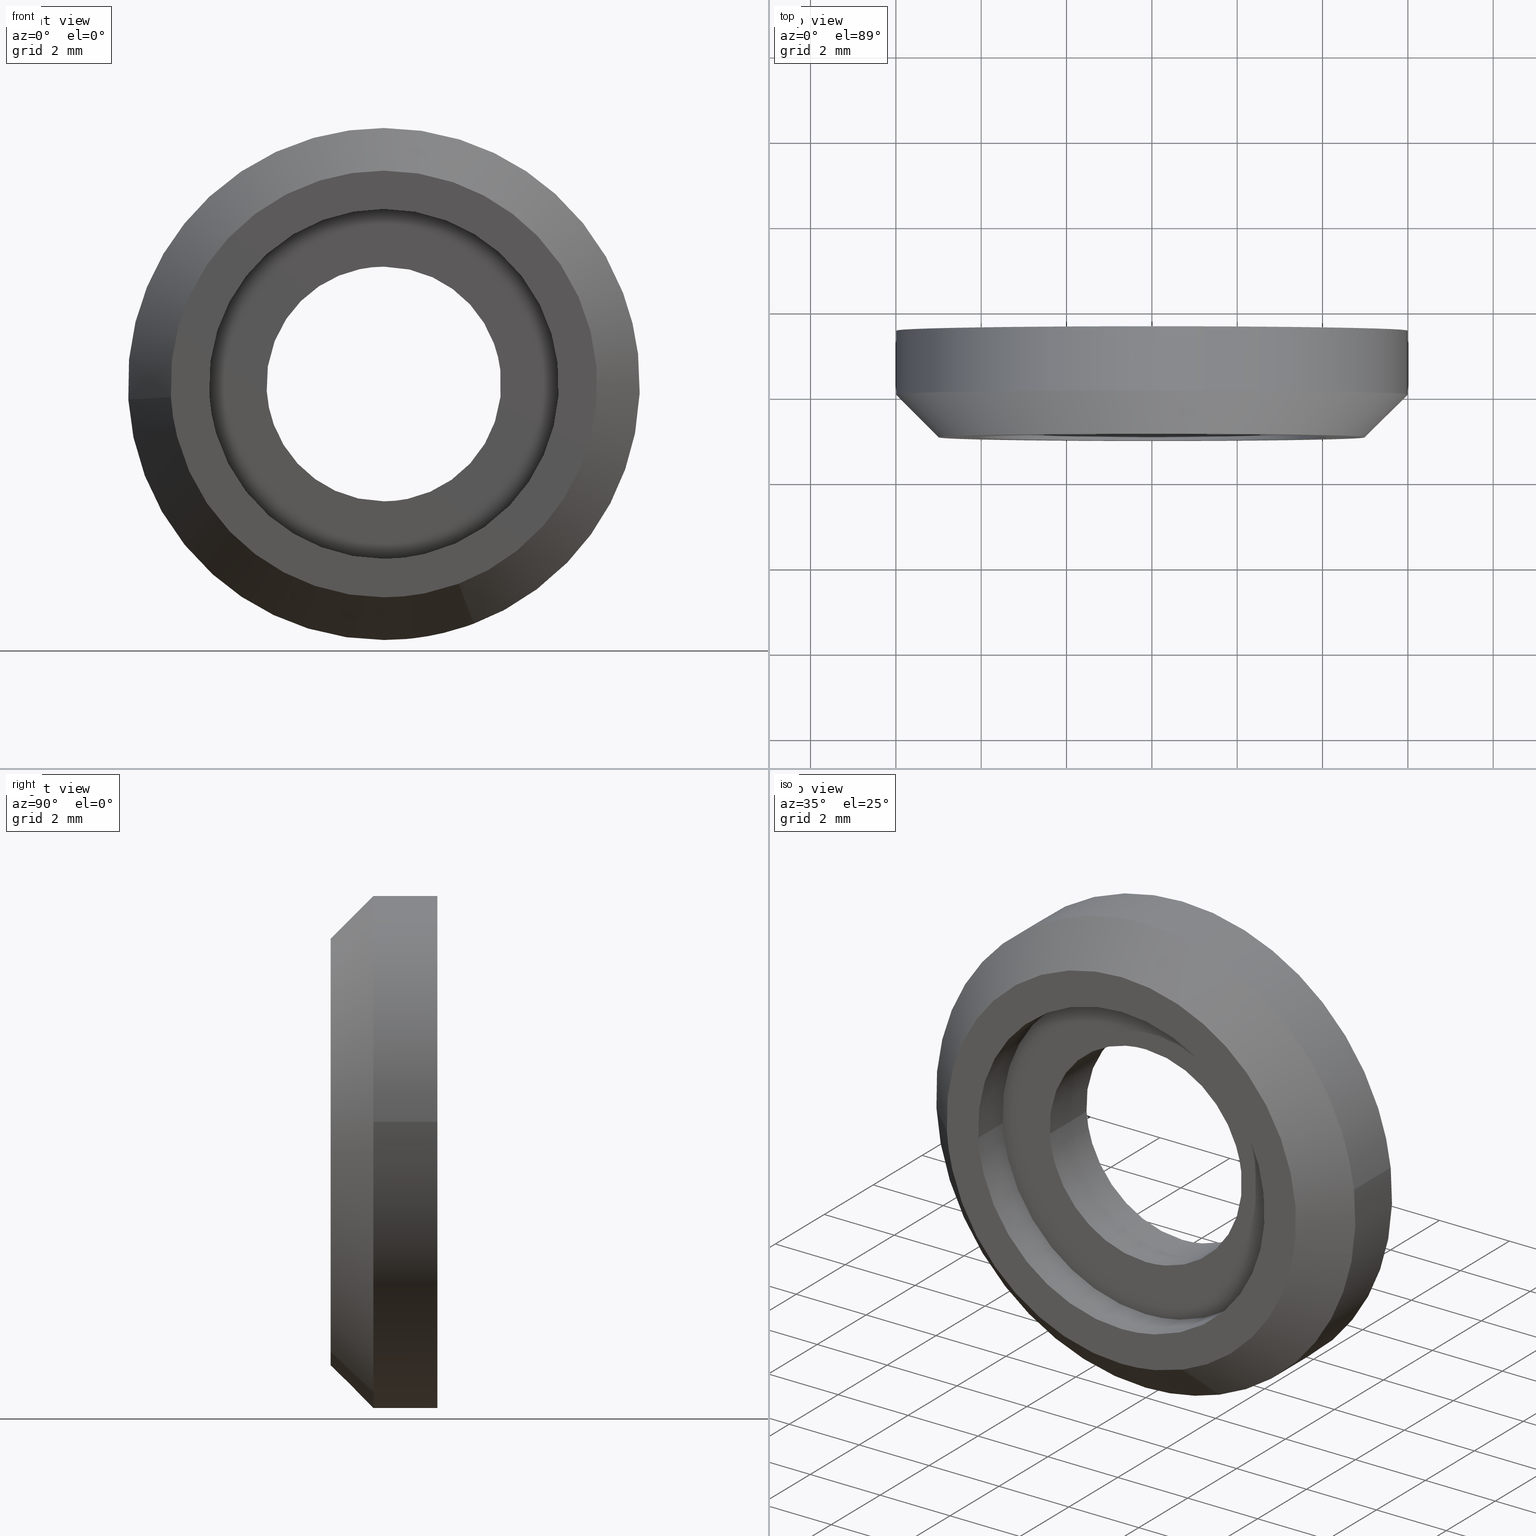
[diagram: canonical four-view strip — front | top / right | iso, engineering-drawing reading convention]
A machine part, canonical four-view strip (front | top / right | iso — engineering-drawing reading convention). The complete STEP part file that produces these views, byte-faithful:
ISO-10303-21;
HEADER;
/****************************************************************
 * Generated by software with PDE/Lib inside                    *
 * PDElib Version 4.4.1-0003, patched  Thursday August 19 11:58 *
 * International Technegroup Inc. (www.iti-oh.com)              *
 ****************************************************************/
FILE_DESCRIPTION((''),'2;1');
FILE_NAME('','2005-10-12T14:41:45',(''),(''),'','CADfix','');
FILE_SCHEMA(('AUTOMOTIVE_DESIGN'));
ENDSEC;
DATA;
#5=APPLICATION_CONTEXT('automotive design');
#6=APPLICATION_PROTOCOL_DEFINITION('Draft International Standard','automotive_design',1998,#5);
#7=PRODUCT_CONTEXT('None',#5,'mechanical');
#8=PRODUCT('facing ring','','None',(#7));
#9=PRODUCT_RELATED_PRODUCT_CATEGORY('part','description',(#8));
#10=PRODUCT_DEFINITION_FORMATION('None','None',#8);
#11=PRODUCT_DEFINITION_CONTEXT('part definition',#5,'design');
#12=PRODUCT_DEFINITION('None','None',#10,#11);
#18=(NAMED_UNIT(*)PLANE_ANGLE_UNIT()SI_UNIT($,.RADIAN.));
#19=DIMENSIONAL_EXPONENTS(0.0,0.0,0.0,0.0,0.0,0.0,0.0);
#20=PLANE_ANGLE_MEASURE_WITH_UNIT(PLANE_ANGLE_MEASURE(0.017453292500000),#18);
#24=(CONVERSION_BASED_UNIT('DEGREE',#20)NAMED_UNIT(#19)PLANE_ANGLE_UNIT());
#28=(NAMED_UNIT(*)SI_UNIT($,.STERADIAN.)SOLID_ANGLE_UNIT());
#32=(LENGTH_UNIT()NAMED_UNIT(*)SI_UNIT(.MILLI.,.METRE.));
#34=UNCERTAINTY_MEASURE_WITH_UNIT(LENGTH_MEASURE(0.001000000000000),#32,'DISTANCE_ACCURACY_VALUE','');
#36=(GEOMETRIC_REPRESENTATION_CONTEXT(3)GLOBAL_UNCERTAINTY_ASSIGNED_CONTEXT((#34))GLOBAL_UNIT_ASSIGNED_CONTEXT((#24,#28,#32))REPRESENTATION_CONTEXT('None','None'));
#37=AXIS2_PLACEMENT_3D('',#38,#39,#40);
#38=CARTESIAN_POINT('',(0.0,0.0,0.0));
#39=DIRECTION('',(0.0,0.0,1.0));
#40=DIRECTION('',(1.0,0.0,0.0));
#41=ADVANCED_BREP_SHAPE_REPRESENTATION('',(#37,#807),#36);
#42=PRODUCT_DEFINITION_SHAPE('','',#12);
#43=SHAPE_DEFINITION_REPRESENTATION(#42,#41);
#44=CARTESIAN_POINT('',(1.749299422598068,-1.025000000000000,-4.657314304413859));
#45=CARTESIAN_POINT('',(1.049672522284154,-1.025000000000000,-4.920095996341613));
#46=CARTESIAN_POINT('',(0.303716484185913,-1.025000000000000,-4.965720622148776));
#47=CARTESIAN_POINT('',(-4.662004137962864,-1.025000000000000,-5.269437106334690));
#48=CARTESIAN_POINT('',(-4.965720622148776,-1.025000000000000,-0.303716484185913));
#49=CARTESIAN_POINT('',(2.118718056943216,0.025625000000000,-5.640850151866094));
#50=CARTESIAN_POINT('',(1.271343314992657,0.025625000000000,-5.959126319187136));
#51=CARTESIAN_POINT('',(0.367855606034723,0.025625000000000,-6.014385994740761));
#52=CARTESIAN_POINT('',(-5.646530388706038,0.025625000000000,-6.382241600775484));
#53=CARTESIAN_POINT('',(-6.014385994740761,0.025625000000000,-0.367855606034723));
#61=(BOUNDED_SURFACE()B_SPLINE_SURFACE(2,1,((#44,#49),(#45,#50),(#46,#51),(#47,#52),(#48,#53)),.UNSPECIFIED.,.F.,.F.,.U.)B_SPLINE_SURFACE_WITH_KNOTS((3,2,3),(2,2),(0.0,1.996716477419504,11.980298864517030),(0.0,1.0),.UNSPECIFIED.)GEOMETRIC_REPRESENTATION_ITEM()RATIONAL_B_SPLINE_SURFACE(((0.906274169979695,0.906274169979695),(0.941421356237309,0.941421356237309),(1.0,1.0),(0.707106781186548,0.707106781186548),(1.0,1.0)))REPRESENTATION_ITEM('')SURFACE());
#62=CARTESIAN_POINT('',(2.109707846355995,6.415291E-013,-5.616861472658163));
#63=VERTEX_POINT('',#62);
#64=CARTESIAN_POINT('',(0.0,0.0,-6.0));
#65=VERTEX_POINT('',#64);
#66=CARTESIAN_POINT('',(2.109707846355995,6.415291E-013,-5.616861472658163));
#67=CARTESIAN_POINT('',(1.089644316407557,0.0,-6.000000000000001));
#68=CARTESIAN_POINT('',(0.0,0.0,-6.0));
#76=(BOUNDED_CURVE()B_SPLINE_CURVE(2,(#66,#67,#68),.UNSPECIFIED.,.F.,.U.)B_SPLINE_CURVE_WITH_KNOTS((3,3),(0.440284170898553,0.500000000000000),.UNSPECIFIED.)CURVE()GEOMETRIC_REPRESENTATION_ITEM()RATIONAL_B_SPLINE_CURVE((0.893499554635329,0.930038554401453,1.0))REPRESENTATION_ITEM(''));
#77=EDGE_CURVE('',#63,#65,#76,.T.);
#78=ORIENTED_EDGE('',*,*,#77,.F.);
#79=CARTESIAN_POINT('',(1.758089871958013,-0.999999999999982,-4.680717893883243));
#80=VERTEX_POINT('',#79);
#81=CARTESIAN_POINT('',(1.758089871958013,-0.999999999999982,-4.680717893883243));
#82=CARTESIAN_POINT('',(2.109707846355995,6.415291E-013,-5.616861472658163));
#83=QUASI_UNIFORM_CURVE('',1,(#81,#82),.UNSPECIFIED.,.F.,.U.);
#84=EDGE_CURVE('',#80,#63,#83,.T.);
#85=ORIENTED_EDGE('',*,*,#84,.F.);
#86=CARTESIAN_POINT('',(0.0,-1.0,-5.0));
#87=VERTEX_POINT('',#86);
#88=CARTESIAN_POINT('',(1.758089871958013,-0.999999999999982,-4.680717893883243));
#89=CARTESIAN_POINT('',(0.908036930333967,-1.0,-5.0));
#90=CARTESIAN_POINT('',(0.0,-1.0,-5.0));
#98=(BOUNDED_CURVE()B_SPLINE_CURVE(2,(#88,#89,#90),.UNSPECIFIED.,.F.,.U.)B_SPLINE_CURVE_WITH_KNOTS((3,3),(0.440284170898899,0.500000000000000),.UNSPECIFIED.)CURVE()GEOMETRIC_REPRESENTATION_ITEM()RATIONAL_B_SPLINE_CURVE((0.893499554635753,0.930038554401858,1.0))REPRESENTATION_ITEM(''));
#99=EDGE_CURVE('',#80,#87,#98,.T.);
#100=ORIENTED_EDGE('',*,*,#99,.T.);
#101=CARTESIAN_POINT('',(-4.990673992109720,-0.999999999999274,-0.305242697679796));
#102=VERTEX_POINT('',#101);
#103=CARTESIAN_POINT('',(0.0,-1.0,-5.0));
#104=CARTESIAN_POINT('',(-4.703530334518134,-1.0,-5.000000000000001));
#105=CARTESIAN_POINT('',(-4.990673992109720,-0.999999999999274,-0.305242697679796));
#113=(BOUNDED_CURVE()B_SPLINE_CURVE(2,(#103,#104,#105),.UNSPECIFIED.,.F.,.U.)B_SPLINE_CURVE_WITH_KNOTS((3,3),(0.500000000000000,0.739332962241590),.UNSPECIFIED.)CURVE()GEOMETRIC_REPRESENTATION_ITEM()RATIONAL_B_SPLINE_CURVE((1.0,0.719603993283609,0.976072041672390))REPRESENTATION_ITEM(''));
#114=EDGE_CURVE('',#87,#102,#113,.T.);
#115=ORIENTED_EDGE('',*,*,#114,.T.);
#116=CARTESIAN_POINT('',(-5.988808854563761,-1.488925E-009,-0.366290165890411));
#117=VERTEX_POINT('',#116);
#118=CARTESIAN_POINT('',(-4.990673992109720,-0.999999999999274,-0.305242697679796));
#119=CARTESIAN_POINT('',(-5.988808854563761,-1.488925E-009,-0.366290165890411));
#120=QUASI_UNIFORM_CURVE('',1,(#118,#119),.UNSPECIFIED.,.F.,.U.);
#121=EDGE_CURVE('',#102,#117,#120,.T.);
#122=ORIENTED_EDGE('',*,*,#121,.T.);
#123=CARTESIAN_POINT('',(0.0,0.0,-6.0));
#124=CARTESIAN_POINT('',(-5.644237412914464,0.0,-6.000000000000001));
#125=CARTESIAN_POINT('',(-5.988808854563761,-1.488925E-009,-0.366290165890411));
#133=(BOUNDED_CURVE()B_SPLINE_CURVE(2,(#123,#124,#125),.UNSPECIFIED.,.F.,.U.)B_SPLINE_CURVE_WITH_KNOTS((3,3),(0.500000000000000,0.739332993105690),.UNSPECIFIED.)CURVE()GEOMETRIC_REPRESENTATION_ITEM()RATIONAL_B_SPLINE_CURVE((1.0,0.719603957124067,0.976072107820041))REPRESENTATION_ITEM(''));
#134=EDGE_CURVE('',#65,#117,#133,.T.);
#135=ORIENTED_EDGE('',*,*,#134,.F.);
#136=EDGE_LOOP('',(#78,#85,#100,#115,#122,#135));
#137=FACE_OUTER_BOUND('',#136,.T.);
#138=ADVANCED_FACE('',(#137),#61,.T.);
#139=CARTESIAN_POINT('',(-4.965720622148776,-1.025000000000000,-0.303716484185913));
#140=CARTESIAN_POINT('',(-5.269437106334690,-1.025000000000000,4.662004137962864));
#141=CARTESIAN_POINT('',(-0.303716484185913,-1.025000000000000,4.965720622148776));
#142=CARTESIAN_POINT('',(4.662004137962864,-1.025000000000000,5.269437106334690));
#143=CARTESIAN_POINT('',(4.965720622148776,-1.025000000000000,0.303716484185913));
#144=CARTESIAN_POINT('',(5.190105183774966,-1.025000000000000,-3.364938669470242));
#145=CARTESIAN_POINT('',(1.749299422598068,-1.025000000000000,-4.657314304413859));
#146=CARTESIAN_POINT('',(-6.014385994740761,0.025625000000000,-0.367855606034723));
#147=CARTESIAN_POINT('',(-6.382241600775484,0.025625000000000,5.646530388706038));
#148=CARTESIAN_POINT('',(-0.367855606034723,0.025625000000000,6.014385994740761));
#149=CARTESIAN_POINT('',(5.646530388706038,0.025625000000000,6.382241600775484));
#150=CARTESIAN_POINT('',(6.014385994740761,0.025625000000000,0.367855606034723));
#151=CARTESIAN_POINT('',(6.286156291052079,0.025625000000000,-4.075549461352096));
#152=CARTESIAN_POINT('',(2.118718056943216,0.025625000000000,-5.640850151866094));
#160=(BOUNDED_SURFACE()B_SPLINE_SURFACE(2,1,((#139,#146),(#140,#147),(#141,#148),(#142,#149),(#143,#150),(#144,#151),(#145,#152)),.UNSPECIFIED.,.F.,.F.,.U.)B_SPLINE_SURFACE_WITH_KNOTS((3,2,2,3),(2,2),(0.0,9.983582387097520,19.967164774195041,27.954030683873061),(0.0,1.0),.UNSPECIFIED.)GEOMETRIC_REPRESENTATION_ITEM()RATIONAL_B_SPLINE_SURFACE(((1.0,1.0),(0.707106781186548,0.707106781186548),(1.0,1.0),(0.707106781186548,0.707106781186548),(1.0,1.0),(0.765685424949238,0.765685424949238),(0.906274169979695,0.906274169979695)))REPRESENTATION_ITEM('')SURFACE());
#161=CARTESIAN_POINT('',(5.958057609029551,2.338979E-014,0.708201614987204));
#162=VERTEX_POINT('',#161);
#163=CARTESIAN_POINT('',(5.958057609029551,2.338979E-014,0.708201614987204));
#164=CARTESIAN_POINT('',(5.999999999999999,0.0,0.355342801385659));
#165=CARTESIAN_POINT('',(6.0,0.0,0.0));
#166=CARTESIAN_POINT('',(6.0,0.0,-4.155657574156489));
#167=CARTESIAN_POINT('',(2.109707846355995,6.415291E-013,-5.616861472658164));
#175=(BOUNDED_CURVE()B_SPLINE_CURVE(2,(#163,#164,#165,#166,#167),.UNSPECIFIED.,.F.,.U.)B_SPLINE_CURVE_WITH_KNOTS((3,2,3),(0.229562581104653,0.250000000000000,0.440284170898552),.UNSPECIFIED.)CURVE()GEOMETRIC_REPRESENTATION_ITEM()RATIONAL_B_SPLINE_CURVE((0.956026965066855,0.976056074382012,1.0,0.777068226785095,0.893499554635329))REPRESENTATION_ITEM(''));
#176=EDGE_CURVE('',#162,#63,#175,.T.);
#177=ORIENTED_EDGE('',*,*,#176,.F.);
#178=CARTESIAN_POINT('',(0.0,0.0,6.0));
#179=VERTEX_POINT('',#178);
#180=CARTESIAN_POINT('',(0.0,0.0,6.0));
#181=CARTESIAN_POINT('',(5.329050572111043,0.0,6.000000000000001));
#182=CARTESIAN_POINT('',(5.958057609029551,2.338979E-014,0.708201614987204));
#190=(BOUNDED_CURVE()B_SPLINE_CURVE(2,(#180,#181,#182),.UNSPECIFIED.,.F.,.U.)B_SPLINE_CURVE_WITH_KNOTS((3,3),(0.0,0.229562581104653),.UNSPECIFIED.)CURVE()GEOMETRIC_REPRESENTATION_ITEM()RATIONAL_B_SPLINE_CURVE((1.0,0.731050706804535,0.956026965066855))REPRESENTATION_ITEM(''));
#191=EDGE_CURVE('',#179,#162,#190,.T.);
#192=ORIENTED_EDGE('',*,*,#191,.F.);
#193=CARTESIAN_POINT('',(-5.988808854563761,-1.488925E-009,-0.366290165890411));
#194=CARTESIAN_POINT('',(-6.0,0.0,-0.183316042675821));
#195=CARTESIAN_POINT('',(-6.0,0.0,0.0));
#196=CARTESIAN_POINT('',(-6.0,0.0,6.0));
#197=CARTESIAN_POINT('',(0.0,0.0,6.0));
#205=(BOUNDED_CURVE()B_SPLINE_CURVE(2,(#193,#194,#195,#196,#197),.UNSPECIFIED.,.F.,.U.)B_SPLINE_CURVE_WITH_KNOTS((3,2,3),(0.739332993105690,0.750000000000000,1.0),.UNSPECIFIED.)CURVE()GEOMETRIC_REPRESENTATION_ITEM()RATIONAL_B_SPLINE_CURVE((0.976072107820041,0.987502824062481,1.0,0.707106781186548,1.0))REPRESENTATION_ITEM(''));
#206=EDGE_CURVE('',#117,#179,#205,.T.);
#207=ORIENTED_EDGE('',*,*,#206,.F.);
#208=ORIENTED_EDGE('',*,*,#121,.F.);
#209=CARTESIAN_POINT('',(0.0,-1.0,5.0));
#210=VERTEX_POINT('',#209);
#211=CARTESIAN_POINT('',(-4.990673992109720,-0.999999999999274,-0.305242697679796));
#212=CARTESIAN_POINT('',(-5.000000000000001,-1.0,-0.152763816498427));
#213=CARTESIAN_POINT('',(-5.0,-1.0,0.0));
#214=CARTESIAN_POINT('',(-5.000000000000001,-1.0,5.000000000000001));
#215=CARTESIAN_POINT('',(0.0,-1.0,5.0));
#223=(BOUNDED_CURVE()B_SPLINE_CURVE(2,(#211,#212,#213,#214,#215),.UNSPECIFIED.,.F.,.U.)B_SPLINE_CURVE_WITH_KNOTS((3,2,3),(0.739332962241590,0.750000000000000,1.0),.UNSPECIFIED.)CURVE()GEOMETRIC_REPRESENTATION_ITEM()RATIONAL_B_SPLINE_CURVE((0.976072041672392,0.987502787902939,1.0,0.707106781186548,1.0))REPRESENTATION_ITEM(''));
#224=EDGE_CURVE('',#102,#210,#223,.T.);
#225=ORIENTED_EDGE('',*,*,#224,.T.);
#226=CARTESIAN_POINT('',(0.0,-1.0,5.0));
#227=CARTESIAN_POINT('',(5.000000000000001,-1.0,5.000000000000001));
#228=CARTESIAN_POINT('',(5.0,-1.0,0.0));
#229=CARTESIAN_POINT('',(5.0,-1.0,-3.463047978471862));
#230=CARTESIAN_POINT('',(1.758089871958013,-0.999999999999982,-4.680717893883243));
#238=(BOUNDED_CURVE()B_SPLINE_CURVE(2,(#226,#227,#228,#229,#230),.UNSPECIFIED.,.F.,.U.)B_SPLINE_CURVE_WITH_KNOTS((3,2,3),(0.0,0.250000000000000,0.440284170898899),.UNSPECIFIED.)CURVE()GEOMETRIC_REPRESENTATION_ITEM()RATIONAL_B_SPLINE_CURVE((1.0,0.707106781186548,1.0,0.777068226784689,0.893499554635753))REPRESENTATION_ITEM(''));
#239=EDGE_CURVE('',#210,#80,#238,.T.);
#240=ORIENTED_EDGE('',*,*,#239,.T.);
#241=ORIENTED_EDGE('',*,*,#84,.T.);
#242=EDGE_LOOP('',(#177,#192,#207,#208,#225,#240,#241));
#243=FACE_OUTER_BOUND('',#242,.T.);
#244=ADVANCED_FACE('',(#243),#160,.T.);
#245=CARTESIAN_POINT('',(5.958057158181998,-0.037500000000000,0.708205407940551));
#246=CARTESIAN_POINT('',(5.978325692691634,-0.037500000000000,0.537688371827866));
#247=CARTESIAN_POINT('',(5.988808790531200,-0.037500000000000,0.366291237209142));
#248=CARTESIAN_POINT('',(6.355100027740342,-0.037500000000000,-5.622517553322059));
#249=CARTESIAN_POINT('',(0.366291237209142,-0.037500000000000,-5.988808790531200));
#250=CARTESIAN_POINT('',(-5.622517553322059,-0.037500000000000,-6.355100027740342));
#251=CARTESIAN_POINT('',(-5.988808790531200,-0.037500000000000,-0.366291237209142));
#252=CARTESIAN_POINT('',(5.958057158181998,1.538437500000000,0.708205407940551));
#253=CARTESIAN_POINT('',(5.978325692691634,1.538437500000001,0.537688371827866));
#254=CARTESIAN_POINT('',(5.988808790531200,1.538437500000000,0.366291237209142));
#255=CARTESIAN_POINT('',(6.355100027740342,1.538437500000001,-5.622517553322059));
#256=CARTESIAN_POINT('',(0.366291237209142,1.538437500000000,-5.988808790531200));
#257=CARTESIAN_POINT('',(-5.622517553322059,1.538437500000001,-6.355100027740342));
#258=CARTESIAN_POINT('',(-5.988808790531200,1.538437500000000,-0.366291237209142));
#266=(BOUNDED_SURFACE()B_SPLINE_SURFACE(2,1,((#245,#252),(#246,#253),(#247,#254),(#248,#255),(#249,#256),(#250,#257),(#251,#258)),.UNSPECIFIED.,.F.,.F.,.U.)B_SPLINE_SURFACE_WITH_KNOTS((3,2,2,3),(2,2),(0.0,0.397645019878172,10.338770516832451,20.279896013786729),(0.0,1.0),.UNSPECIFIED.)GEOMETRIC_REPRESENTATION_ITEM()RATIONAL_B_SPLINE_SURFACE(((0.977505800795127,0.977505800795127),(0.988284271247462,0.988284271247462),(1.0,1.0),(0.707106781186548,0.707106781186548),(1.0,1.0),(0.707106781186548,0.707106781186548),(1.0,1.0)))REPRESENTATION_ITEM('')SURFACE());
#267=ORIENTED_EDGE('',*,*,#176,.T.);
#268=ORIENTED_EDGE('',*,*,#77,.T.);
#269=ORIENTED_EDGE('',*,*,#134,.T.);
#270=CARTESIAN_POINT('',(-5.988808919991055,1.500000000000000,-0.366289120546966));
#271=VERTEX_POINT('',#270);
#272=CARTESIAN_POINT('',(-5.988808854563761,-1.488925E-009,-0.366290165890411));
#273=CARTESIAN_POINT('',(-5.988808919991055,1.500000000000000,-0.366289120546966));
#274=QUASI_UNIFORM_CURVE('',1,(#272,#273),.UNSPECIFIED.,.F.,.U.);
#275=EDGE_CURVE('',#117,#271,#274,.T.);
#276=ORIENTED_EDGE('',*,*,#275,.T.);
#277=CARTESIAN_POINT('',(0.0,1.500000000000000,-6.0));
#278=VERTEX_POINT('',#277);
#279=CARTESIAN_POINT('',(0.0,1.500000000000000,-6.0));
#280=CARTESIAN_POINT('',(-5.644238400040059,1.500000000000001,-6.000000000000001));
#281=CARTESIAN_POINT('',(-5.988808919991055,1.500000000000000,-0.366289120546966));
#289=(BOUNDED_CURVE()B_SPLINE_CURVE(2,(#279,#280,#281),.UNSPECIFIED.,.F.,.U.)B_SPLINE_CURVE_WITH_KNOTS((3,3),(0.500000000000000,0.739333023226263),.UNSPECIFIED.)CURVE()GEOMETRIC_REPRESENTATION_ITEM()RATIONAL_B_SPLINE_CURVE((1.0,0.719603921835620,0.976072172374189))REPRESENTATION_ITEM(''));
#290=EDGE_CURVE('',#278,#271,#289,.T.);
#291=ORIENTED_EDGE('',*,*,#290,.F.);
#292=CARTESIAN_POINT('',(5.958057603599299,1.500000000000000,0.708201660671828));
#293=VERTEX_POINT('',#292);
#294=CARTESIAN_POINT('',(5.958057603599301,1.500000000000000,0.708201660671828));
#295=CARTESIAN_POINT('',(6.0,1.500000000000000,0.355342824469453));
#296=CARTESIAN_POINT('',(6.0,1.500000000000000,0.0));
#297=CARTESIAN_POINT('',(6.0,1.500000000000000,-6.0));
#298=CARTESIAN_POINT('',(0.0,1.500000000000000,-6.0));
#306=(BOUNDED_CURVE()B_SPLINE_CURVE(2,(#294,#295,#296,#297,#298),.UNSPECIFIED.,.F.,.U.)B_SPLINE_CURVE_WITH_KNOTS((3,2,3),(0.229562579808786,0.250000000000000,0.500000000000000),.UNSPECIFIED.)CURVE()GEOMETRIC_REPRESENTATION_ITEM()RATIONAL_B_SPLINE_CURVE((0.956026962526900,0.976056072863809,1.0,0.707106781186548,1.0))REPRESENTATION_ITEM(''));
#307=EDGE_CURVE('',#293,#278,#306,.T.);
#308=ORIENTED_EDGE('',*,*,#307,.F.);
#309=CARTESIAN_POINT('',(5.958057609029551,2.338979E-014,0.708201614987204));
#310=CARTESIAN_POINT('',(5.958057603599299,1.500000000000000,0.708201660671828));
#311=QUASI_UNIFORM_CURVE('',1,(#309,#310),.UNSPECIFIED.,.F.,.U.);
#312=EDGE_CURVE('',#162,#293,#311,.T.);
#313=ORIENTED_EDGE('',*,*,#312,.F.);
#314=EDGE_LOOP('',(#267,#268,#269,#276,#291,#308,#313));
#315=FACE_OUTER_BOUND('',#314,.T.);
#316=ADVANCED_FACE('',(#315),#266,.T.);
#317=CARTESIAN_POINT('',(-5.988808790531200,-0.037500000000000,-0.366291237209142));
#318=CARTESIAN_POINT('',(-6.355100027740342,-0.037500000000000,5.622517553322059));
#319=CARTESIAN_POINT('',(-0.366291237209142,-0.037500000000000,5.988808790531200));
#320=CARTESIAN_POINT('',(5.289260945037006,-0.037500000000000,6.334717180395164));
#321=CARTESIAN_POINT('',(5.958057158181998,-0.037500000000000,0.708205407940551));
#322=CARTESIAN_POINT('',(-5.988808790531200,1.538437500000000,-0.366291237209142));
#323=CARTESIAN_POINT('',(-6.355100027740342,1.538437500000001,5.622517553322059));
#324=CARTESIAN_POINT('',(-0.366291237209142,1.538437500000000,5.988808790531200));
#325=CARTESIAN_POINT('',(5.289260945037006,1.538437500000000,6.334717180395164));
#326=CARTESIAN_POINT('',(5.958057158181998,1.538437500000000,0.708205407940551));
#334=(BOUNDED_SURFACE()B_SPLINE_SURFACE(2,1,((#317,#322),(#318,#323),(#319,#324),(#320,#325),(#321,#326)),.UNSPECIFIED.,.F.,.F.,.U.)B_SPLINE_SURFACE_WITH_KNOTS((3,2,3),(2,2),(0.0,9.941125496954278,19.484605974030391),(0.0,1.0),.UNSPECIFIED.)GEOMETRIC_REPRESENTATION_ITEM()RATIONAL_B_SPLINE_SURFACE(((1.0,1.0),(0.707106781186548,0.707106781186548),(1.0,1.0),(0.718822509939086,0.718822509939086),(0.977505800795127,0.977505800795127)))REPRESENTATION_ITEM('')SURFACE());
#335=ORIENTED_EDGE('',*,*,#191,.T.);
#336=ORIENTED_EDGE('',*,*,#312,.T.);
#337=CARTESIAN_POINT('',(0.0,1.500000000000000,6.0));
#338=VERTEX_POINT('',#337);
#339=CARTESIAN_POINT('',(0.0,1.500000000000000,6.0));
#340=CARTESIAN_POINT('',(5.329050530961814,1.500000000000000,6.000000000000001));
#341=CARTESIAN_POINT('',(5.958057603599301,1.500000000000000,0.708201660671828));
#349=(BOUNDED_CURVE()B_SPLINE_CURVE(2,(#339,#340,#341),.UNSPECIFIED.,.F.,.U.)B_SPLINE_CURVE_WITH_KNOTS((3,3),(0.0,0.229562579808786),.UNSPECIFIED.)CURVE()GEOMETRIC_REPRESENTATION_ITEM()RATIONAL_B_SPLINE_CURVE((1.0,0.731050708322738,0.956026962526900))REPRESENTATION_ITEM(''));
#350=EDGE_CURVE('',#338,#293,#349,.T.);
#351=ORIENTED_EDGE('',*,*,#350,.F.);
#352=CARTESIAN_POINT('',(-5.988808919991055,1.500000000000000,-0.366289120546966));
#353=CARTESIAN_POINT('',(-6.0,1.500000000000000,-0.183315518493018));
#354=CARTESIAN_POINT('',(-6.0,1.500000000000000,0.0));
#355=CARTESIAN_POINT('',(-6.0,1.500000000000000,6.0));
#356=CARTESIAN_POINT('',(0.0,1.500000000000000,6.0));
#364=(BOUNDED_CURVE()B_SPLINE_CURVE(2,(#352,#353,#354,#355,#356),.UNSPECIFIED.,.F.,.U.)B_SPLINE_CURVE_WITH_KNOTS((3,2,3),(0.739333023226263,0.750000000000000,1.0),.UNSPECIFIED.)CURVE()GEOMETRIC_REPRESENTATION_ITEM()RATIONAL_B_SPLINE_CURVE((0.976072172374189,0.987502859350927,1.0,0.707106781186548,1.0))REPRESENTATION_ITEM(''));
#365=EDGE_CURVE('',#271,#338,#364,.T.);
#366=ORIENTED_EDGE('',*,*,#365,.F.);
#367=ORIENTED_EDGE('',*,*,#275,.F.);
#368=ORIENTED_EDGE('',*,*,#206,.T.);
#369=EDGE_LOOP('',(#335,#336,#351,#366,#367,#368));
#370=FACE_OUTER_BOUND('',#369,.T.);
#371=ADVANCED_FACE('',(#370),#334,.T.);
#372=CARTESIAN_POINT('',(2.725959585049179,-0.037500000000000,0.365115796185246));
#373=CARTESIAN_POINT('',(2.728374681257778,-0.037500000000000,0.344797847335927));
#374=CARTESIAN_POINT('',(2.740065942483665,-0.037500000000000,0.246440503754439));
#375=CARTESIAN_POINT('',(2.744870695660134,-0.037500000000000,0.167883483720857));
#376=CARTESIAN_POINT('',(2.912754179380990,-0.037500000000000,-2.576987211939278));
#377=CARTESIAN_POINT('',(0.167883483720857,-0.037500000000000,-2.744870695660134));
#378=CARTESIAN_POINT('',(-2.576987211939278,-0.037500000000000,-2.912754179380990));
#379=CARTESIAN_POINT('',(-2.746078075068390,-0.037500000000000,-0.148143004891067));
#380=CARTESIAN_POINT('',(-2.747278282447295,-0.037500000000000,-0.128519787704589));
#381=CARTESIAN_POINT('',(2.725959585049179,1.538437500000000,0.365115796185246));
#382=CARTESIAN_POINT('',(2.728374681257778,1.538437500000001,0.344797847335927));
#383=CARTESIAN_POINT('',(2.740065942483665,1.538437500000001,0.246440503754439));
#384=CARTESIAN_POINT('',(2.744870695660134,1.538437500000000,0.167883483720857));
#385=CARTESIAN_POINT('',(2.912754179380990,1.538437500000001,-2.576987211939278));
#386=CARTESIAN_POINT('',(0.167883483720857,1.538437500000000,-2.744870695660134));
#387=CARTESIAN_POINT('',(-2.576987211939278,1.538437500000001,-2.912754179380990));
#388=CARTESIAN_POINT('',(-2.746078075068390,1.538437500000001,-0.148143004891067));
#389=CARTESIAN_POINT('',(-2.747278282447295,1.538437500000000,-0.128519787704589));
#397=(BOUNDED_SURFACE()B_SPLINE_SURFACE(2,1,((#372,#381),(#373,#382),(#374,#383),(#375,#384),(#376,#385),(#377,#386),(#378,#387),(#379,#388),(#380,#389)),.UNSPECIFIED.,.F.,.F.,.U.)B_SPLINE_SURFACE_WITH_KNOTS((3,1,2,2,1,3),(2,2),(0.0,0.046470084180643,0.228724051624805,4.785073237728851,9.341422423832897,9.387902138452885),(0.0,1.0),.UNSPECIFIED.)GEOMETRIC_REPRESENTATION_ITEM()RATIONAL_B_SPLINE_SURFACE(((0.972009334119722,0.972009334119722),(0.974757567457424,0.974757567457424),(0.988284271247462,0.988284271247462),(1.0,1.0),(0.707106781186548,0.707106781186548),(1.0,1.0),(0.707106781186548,0.707106781186548),(1.002987829217764,1.002987829217764),(1.005975658435529,1.005975658435529)))REPRESENTATION_ITEM('')SURFACE());
#398=CARTESIAN_POINT('',(2.730776685649423,1.500000000000011,0.324590038504644));
#399=VERTEX_POINT('',#398);
#400=CARTESIAN_POINT('',(0.0,1.500000000000000,-2.750000000000000));
#401=VERTEX_POINT('',#400);
#402=CARTESIAN_POINT('',(2.730776685649423,1.500000000000012,0.324590038504644));
#403=CARTESIAN_POINT('',(2.750000000000000,1.500000000000000,0.162864253934205));
#404=CARTESIAN_POINT('',(2.750000000000000,1.500000000000000,0.0));
#405=CARTESIAN_POINT('',(2.750000000000000,1.500000000000000,-2.750000000000000));
#406=CARTESIAN_POINT('',(0.0,1.500000000000000,-2.750000000000000));
#414=(BOUNDED_CURVE()B_SPLINE_CURVE(2,(#402,#403,#404,#405,#406),.UNSPECIFIED.,.F.,.U.)B_SPLINE_CURVE_WITH_KNOTS((3,2,3),(0.229562727678856,0.250000000000000,0.500000000000000),.UNSPECIFIED.)CURVE()GEOMETRIC_REPRESENTATION_ITEM()RATIONAL_B_SPLINE_CURVE((0.956027252358787,0.976056246104372,1.0,0.707106781186548,1.0))REPRESENTATION_ITEM(''));
#415=EDGE_CURVE('',#399,#401,#414,.T.);
#416=ORIENTED_EDGE('',*,*,#415,.T.);
#417=CARTESIAN_POINT('',(-2.744870953723958,1.500000000000022,-0.167879264308188));
#418=VERTEX_POINT('',#417);
#419=CARTESIAN_POINT('',(0.0,1.500000000000000,-2.750000000000000));
#420=CARTESIAN_POINT('',(-2.586945668068611,1.500000000000000,-2.750000000000000));
#421=CARTESIAN_POINT('',(-2.744870953723959,1.500000000000022,-0.167879264308188));
#429=(BOUNDED_CURVE()B_SPLINE_CURVE(2,(#419,#420,#421),.UNSPECIFIED.,.F.,.U.)B_SPLINE_CURVE_WITH_KNOTS((3,3),(0.500000000000000,0.739333227480785),.UNSPECIFIED.)CURVE()GEOMETRIC_REPRESENTATION_ITEM()RATIONAL_B_SPLINE_CURVE((1.0,0.719603682536563,0.976072610131135))REPRESENTATION_ITEM(''));
#430=EDGE_CURVE('',#401,#418,#429,.T.);
#431=ORIENTED_EDGE('',*,*,#430,.T.);
#432=CARTESIAN_POINT('',(-2.744870950539090,3.469447E-017,-0.167879316382936));
#433=VERTEX_POINT('',#432);
#434=CARTESIAN_POINT('',(-2.744870950539090,3.469447E-017,-0.167879316382936));
#435=CARTESIAN_POINT('',(-2.744870953723958,1.500000000000022,-0.167879264308188));
#436=QUASI_UNIFORM_CURVE('',1,(#434,#435),.UNSPECIFIED.,.F.,.U.);
#437=EDGE_CURVE('',#433,#418,#436,.T.);
#438=ORIENTED_EDGE('',*,*,#437,.F.);
#439=CARTESIAN_POINT('',(0.0,0.0,-2.750000000000000));
#440=VERTEX_POINT('',#439);
#441=CARTESIAN_POINT('',(0.0,0.0,-2.750000000000000));
#442=CARTESIAN_POINT('',(-2.586945618898264,0.0,-2.750000000000000));
#443=CARTESIAN_POINT('',(-2.744870950539089,3.469447E-017,-0.167879316382936));
#451=(BOUNDED_CURVE()B_SPLINE_CURVE(2,(#441,#442,#443),.UNSPECIFIED.,.F.,.U.)B_SPLINE_CURVE_WITH_KNOTS((3,3),(0.500000000000000,0.739333224207285),.UNSPECIFIED.)CURVE()GEOMETRIC_REPRESENTATION_ITEM()RATIONAL_B_SPLINE_CURVE((1.0,0.719603686371707,0.976072603115385))REPRESENTATION_ITEM(''));
#452=EDGE_CURVE('',#440,#433,#451,.T.);
#453=ORIENTED_EDGE('',*,*,#452,.F.);
#454=CARTESIAN_POINT('',(2.730776679625815,3.194357E-017,0.324590089181917));
#455=VERTEX_POINT('',#454);
#456=CARTESIAN_POINT('',(2.730776679625815,3.194357E-017,0.324590089181916));
#457=CARTESIAN_POINT('',(2.750000000000000,0.0,0.162864279540707));
#458=CARTESIAN_POINT('',(2.750000000000000,0.0,0.0));
#459=CARTESIAN_POINT('',(2.750000000000000,0.0,-2.750000000000000));
#460=CARTESIAN_POINT('',(0.0,0.0,-2.750000000000000));
#468=(BOUNDED_CURVE()B_SPLINE_CURVE(2,(#456,#457,#458,#459,#460),.UNSPECIFIED.,.F.,.U.)B_SPLINE_CURVE_WITH_KNOTS((3,2,3),(0.229562724542522,0.250000000000000,0.500000000000000),.UNSPECIFIED.)CURVE()GEOMETRIC_REPRESENTATION_ITEM()RATIONAL_B_SPLINE_CURVE((0.956027246211430,0.976056242429929,1.0,0.707106781186548,1.0))REPRESENTATION_ITEM(''));
#469=EDGE_CURVE('',#455,#440,#468,.T.);
#470=ORIENTED_EDGE('',*,*,#469,.F.);
#471=CARTESIAN_POINT('',(2.730776679625815,3.194357E-017,0.324590089181917));
#472=CARTESIAN_POINT('',(2.730776685649423,1.500000000000011,0.324590038504644));
#473=QUASI_UNIFORM_CURVE('',1,(#471,#472),.UNSPECIFIED.,.F.,.U.);
#474=EDGE_CURVE('',#455,#399,#473,.T.);
#475=ORIENTED_EDGE('',*,*,#474,.T.);
#476=EDGE_LOOP('',(#416,#431,#438,#453,#470,#475));
#477=FACE_OUTER_BOUND('',#476,.T.);
#478=ADVANCED_FACE('',(#477),#397,.F.);
#479=CARTESIAN_POINT('',(-2.742557482287090,-0.037500000000000,-0.205704188055494));
#480=CARTESIAN_POINT('',(-2.743710778967167,-0.037500000000000,-0.186847954015175));
#481=CARTESIAN_POINT('',(-2.912754179380990,-0.037500000000000,2.576987211939278));
#482=CARTESIAN_POINT('',(-0.167883483720857,-0.037500000000000,2.744870695660134));
#483=CARTESIAN_POINT('',(2.424244599808628,-0.037500000000000,2.903412041014450));
#484=CARTESIAN_POINT('',(2.733071324263455,-0.037500000000000,0.305285486704895));
#485=CARTESIAN_POINT('',(2.735354115827338,-0.037500000000000,0.286080602831752));
#486=CARTESIAN_POINT('',(-2.742557482287090,1.538437500000000,-0.205704188055494));
#487=CARTESIAN_POINT('',(-2.743710778967167,1.538437500000001,-0.186847954015175));
#488=CARTESIAN_POINT('',(-2.912754179380990,1.538437500000001,2.576987211939278));
#489=CARTESIAN_POINT('',(-0.167883483720857,1.538437500000000,2.744870695660134));
#490=CARTESIAN_POINT('',(2.424244599808628,1.538437500000000,2.903412041014450));
#491=CARTESIAN_POINT('',(2.733071324263455,1.538437500000001,0.305285486704895));
#492=CARTESIAN_POINT('',(2.735354115827338,1.538437500000000,0.286080602831752));
#500=(BOUNDED_SURFACE()B_SPLINE_SURFACE(2,1,((#479,#486),(#480,#487),(#481,#488),(#482,#489),(#483,#490),(#484,#491),(#485,#492)),.UNSPECIFIED.,.F.,.F.,.U.)B_SPLINE_SURFACE_WITH_KNOTS((3,1,2,1,3),(2,2),(0.0,0.044647328788295,4.600996514892342,8.975091733552226,9.019748690098576),(0.0,1.0),.UNSPECIFIED.)GEOMETRIC_REPRESENTATION_ITEM()RATIONAL_B_SPLINE_SURFACE(((1.005740077990558,1.005740077990558),(1.002870038995279,1.002870038995279),(0.707106781186548,0.707106781186548),(1.0,1.0),(0.718822509939086,0.718822509939086),(0.980146806054853,0.980146806054853),(0.982787811314580,0.982787811314580)))REPRESENTATION_ITEM('')SURFACE());
#501=CARTESIAN_POINT('',(0.0,1.500000000000000,2.750000000000000));
#502=VERTEX_POINT('',#501);
#503=CARTESIAN_POINT('',(0.0,1.500000000000000,2.750000000000000));
#504=CARTESIAN_POINT('',(2.442483645460547,1.500000000000001,2.750000000000000));
#505=CARTESIAN_POINT('',(2.730776685649423,1.500000000000012,0.324590038504644));
#513=(BOUNDED_CURVE()B_SPLINE_CURVE(2,(#503,#504,#505),.UNSPECIFIED.,.F.,.U.)B_SPLINE_CURVE_WITH_KNOTS((3,3),(0.0,0.229562727678856),.UNSPECIFIED.)CURVE()GEOMETRIC_REPRESENTATION_ITEM()RATIONAL_B_SPLINE_CURVE((1.0,0.731050535082176,0.956027252358787))REPRESENTATION_ITEM(''));
#514=EDGE_CURVE('',#502,#399,#513,.T.);
#515=ORIENTED_EDGE('',*,*,#514,.T.);
#516=ORIENTED_EDGE('',*,*,#474,.F.);
#517=CARTESIAN_POINT('',(0.0,0.0,2.750000000000000));
#518=VERTEX_POINT('',#517);
#519=CARTESIAN_POINT('',(0.0,0.0,2.750000000000000));
#520=CARTESIAN_POINT('',(2.442483599814294,0.0,2.750000000000000));
#521=CARTESIAN_POINT('',(2.730776679625815,3.194357E-017,0.324590089181916));
#529=(BOUNDED_CURVE()B_SPLINE_CURVE(2,(#519,#520,#521),.UNSPECIFIED.,.F.,.U.)B_SPLINE_CURVE_WITH_KNOTS((3,3),(0.0,0.229562724542522),.UNSPECIFIED.)CURVE()GEOMETRIC_REPRESENTATION_ITEM()RATIONAL_B_SPLINE_CURVE((1.0,0.731050538756619,0.956027246211430))REPRESENTATION_ITEM(''));
#530=EDGE_CURVE('',#518,#455,#529,.T.);
#531=ORIENTED_EDGE('',*,*,#530,.F.);
#532=CARTESIAN_POINT('',(-2.744870950539089,3.469447E-017,-0.167879316382936));
#533=CARTESIAN_POINT('',(-2.750000000000000,0.0,-0.084018009559996));
#534=CARTESIAN_POINT('',(-2.750000000000000,0.0,0.0));
#535=CARTESIAN_POINT('',(-2.750000000000000,0.0,2.750000000000000));
#536=CARTESIAN_POINT('',(0.0,0.0,2.750000000000000));
#544=(BOUNDED_CURVE()B_SPLINE_CURVE(2,(#532,#533,#534,#535,#536),.UNSPECIFIED.,.F.,.U.)B_SPLINE_CURVE_WITH_KNOTS((3,2,3),(0.739333224207285,0.750000000000000,1.0),.UNSPECIFIED.)CURVE()GEOMETRIC_REPRESENTATION_ITEM()RATIONAL_B_SPLINE_CURVE((0.976072603115385,0.987503094814841,1.0,0.707106781186548,1.0))REPRESENTATION_ITEM(''));
#545=EDGE_CURVE('',#433,#518,#544,.T.);
#546=ORIENTED_EDGE('',*,*,#545,.F.);
#547=ORIENTED_EDGE('',*,*,#437,.T.);
#548=CARTESIAN_POINT('',(-2.744870953723959,1.500000000000022,-0.167879264308188));
#549=CARTESIAN_POINT('',(-2.750000000000000,1.500000000000000,-0.084017983449622));
#550=CARTESIAN_POINT('',(-2.750000000000000,1.500000000000000,0.0));
#551=CARTESIAN_POINT('',(-2.750000000000000,1.500000000000000,2.750000000000000));
#552=CARTESIAN_POINT('',(0.0,1.500000000000000,2.750000000000000));
#560=(BOUNDED_CURVE()B_SPLINE_CURVE(2,(#548,#549,#550,#551,#552),.UNSPECIFIED.,.F.,.U.)B_SPLINE_CURVE_WITH_KNOTS((3,2,3),(0.739333227480785,0.750000000000000,1.0),.UNSPECIFIED.)CURVE()GEOMETRIC_REPRESENTATION_ITEM()RATIONAL_B_SPLINE_CURVE((0.976072610131135,0.987503098649985,1.0,0.707106781186548,1.0))REPRESENTATION_ITEM(''));
#561=EDGE_CURVE('',#418,#502,#560,.T.);
#562=ORIENTED_EDGE('',*,*,#561,.T.);
#563=EDGE_LOOP('',(#515,#516,#531,#546,#547,#562));
#564=FACE_OUTER_BOUND('',#563,.T.);
#565=ADVANCED_FACE('',(#564),#500,.F.);
#566=CARTESIAN_POINT('',(4.071339058091032,-1.025000000000000,0.483940362092710));
#567=CARTESIAN_POINT('',(4.085189223339283,-1.025000000000000,0.367420387415709));
#568=CARTESIAN_POINT('',(4.092352673529653,-1.025000000000000,0.250299012092914));
#569=CARTESIAN_POINT('',(4.342651685622566,-1.025000000000000,-3.842053661436740));
#570=CARTESIAN_POINT('',(0.250299012092914,-1.025000000000000,-4.092352673529653));
#571=CARTESIAN_POINT('',(-3.842053661436740,-1.025000000000000,-4.342651685622566));
#572=CARTESIAN_POINT('',(-4.092352673529653,-1.025000000000000,-0.250299012092914));
#573=CARTESIAN_POINT('',(4.071339058091032,0.025625000000000,0.483940362092710));
#574=CARTESIAN_POINT('',(4.085189223339283,0.025625000000000,0.367420387415709));
#575=CARTESIAN_POINT('',(4.092352673529653,0.025625000000000,0.250299012092914));
#576=CARTESIAN_POINT('',(4.342651685622566,0.025625000000000,-3.842053661436740));
#577=CARTESIAN_POINT('',(0.250299012092914,0.025625000000000,-4.092352673529653));
#578=CARTESIAN_POINT('',(-3.842053661436740,0.025625000000000,-4.342651685622566));
#579=CARTESIAN_POINT('',(-4.092352673529653,0.025625000000000,-0.250299012092914));
#587=(BOUNDED_SURFACE()B_SPLINE_SURFACE(2,1,((#566,#573),(#567,#574),(#568,#575),(#569,#576),(#570,#577),(#571,#578),(#572,#579)),.UNSPECIFIED.,.F.,.F.,.U.)B_SPLINE_SURFACE_WITH_KNOTS((3,2,2,3),(2,2),(0.0,0.271724096916751,7.064826519835508,13.857928942754270),(0.0,1.0),.UNSPECIFIED.)GEOMETRIC_REPRESENTATION_ITEM()RATIONAL_B_SPLINE_SURFACE(((0.977505800795127,0.977505800795127),(0.988284271247462,0.988284271247462),(1.0,1.0),(0.707106781186548,0.707106781186548),(1.0,1.0),(0.707106781186548,0.707106781186548),(1.0,1.0)))REPRESENTATION_ITEM('')SURFACE());
#588=CARTESIAN_POINT('',(4.071339481019626,4.606795E-014,0.483936804012672));
#589=VERTEX_POINT('',#588);
#590=CARTESIAN_POINT('',(0.0,0.0,-4.100000000000001));
#591=VERTEX_POINT('',#590);
#592=CARTESIAN_POINT('',(4.071339481019626,4.606795E-014,0.483936804012673));
#593=CARTESIAN_POINT('',(4.100000000000001,0.0,0.242817092725262));
#594=CARTESIAN_POINT('',(4.100000000000001,0.0,0.0));
#595=CARTESIAN_POINT('',(4.100000000000001,0.0,-4.100000000000001));
#596=CARTESIAN_POINT('',(0.0,0.0,-4.100000000000001));
#604=(BOUNDED_CURVE()B_SPLINE_CURVE(2,(#592,#593,#594,#595,#596),.UNSPECIFIED.,.F.,.U.)B_SPLINE_CURVE_WITH_KNOTS((3,2,3),(0.229562621213272,0.250000000000000,0.500000000000000),.UNSPECIFIED.)CURVE()GEOMETRIC_REPRESENTATION_ITEM()RATIONAL_B_SPLINE_CURVE((0.956027043681484,0.976056121372181,1.0,0.707106781186547,1.0))REPRESENTATION_ITEM(''));
#605=EDGE_CURVE('',#589,#591,#604,.T.);
#606=ORIENTED_EDGE('',*,*,#605,.T.);
#607=CARTESIAN_POINT('',(-4.092352866307658,-4.467954E-014,-0.250295860160577));
#608=VERTEX_POINT('',#607);
#609=CARTESIAN_POINT('',(0.0,0.0,-4.100000000000001));
#610=CARTESIAN_POINT('',(-3.856897850447983,0.0,-4.100000000000000));
#611=CARTESIAN_POINT('',(-4.092352866307658,-4.467954E-014,-0.250295860160578));
#619=(BOUNDED_CURVE()B_SPLINE_CURVE(2,(#609,#610,#611),.UNSPECIFIED.,.F.,.U.)B_SPLINE_CURVE_WITH_KNOTS((3,3),(0.500000000000000,0.739333095137616),.UNSPECIFIED.)CURVE()GEOMETRIC_REPRESENTATION_ITEM()RATIONAL_B_SPLINE_CURVE((1.0,0.719603837586229,0.976072326494038))REPRESENTATION_ITEM(''));
#620=EDGE_CURVE('',#591,#608,#619,.T.);
#621=ORIENTED_EDGE('',*,*,#620,.T.);
#622=CARTESIAN_POINT('',(-4.092352863930728,-1.0,-0.250295899024020));
#623=VERTEX_POINT('',#622);
#624=CARTESIAN_POINT('',(-4.092352863930728,-1.0,-0.250295899024020));
#625=CARTESIAN_POINT('',(-4.092352866307658,-4.467954E-014,-0.250295860160577));
#626=QUASI_UNIFORM_CURVE('',1,(#624,#625),.UNSPECIFIED.,.F.,.U.);
#627=EDGE_CURVE('',#623,#608,#626,.T.);
#628=ORIENTED_EDGE('',*,*,#627,.F.);
#629=CARTESIAN_POINT('',(0.0,-1.0,-4.100000000000001));
#630=VERTEX_POINT('',#629);
#631=CARTESIAN_POINT('',(0.0,-1.0,-4.100000000000001));
#632=CARTESIAN_POINT('',(-3.856897813752122,-1.0,-4.100000000000001));
#633=CARTESIAN_POINT('',(-4.092352863930728,-1.0,-0.250295899024020));
#641=(BOUNDED_CURVE()B_SPLINE_CURVE(2,(#631,#632,#633),.UNSPECIFIED.,.F.,.U.)B_SPLINE_CURVE_WITH_KNOTS((3,3),(0.500000000000000,0.739333093499008),.UNSPECIFIED.)CURVE()GEOMETRIC_REPRESENTATION_ITEM()RATIONAL_B_SPLINE_CURVE((1.0,0.719603839505978,0.976072322982185))REPRESENTATION_ITEM(''));
#642=EDGE_CURVE('',#630,#623,#641,.T.);
#643=ORIENTED_EDGE('',*,*,#642,.F.);
#644=CARTESIAN_POINT('',(4.071339475799119,-1.0,0.483936847932902));
#645=VERTEX_POINT('',#644);
#646=CARTESIAN_POINT('',(4.071339475799119,-1.0,0.483936847932902));
#647=CARTESIAN_POINT('',(4.100000000000000,-1.0,0.242817114917531));
#648=CARTESIAN_POINT('',(4.100000000000001,-1.0,0.0));
#649=CARTESIAN_POINT('',(4.100000000000001,-1.0,-4.100000000000001));
#650=CARTESIAN_POINT('',(0.0,-1.0,-4.100000000000001));
#658=(BOUNDED_CURVE()B_SPLINE_CURVE(2,(#646,#647,#648,#649,#650),.UNSPECIFIED.,.F.,.U.)B_SPLINE_CURVE_WITH_KNOTS((3,2,3),(0.229562619390121,0.250000000000000,0.500000000000000),.UNSPECIFIED.)CURVE()GEOMETRIC_REPRESENTATION_ITEM()RATIONAL_B_SPLINE_CURVE((0.956027040108030,0.976056119236228,1.0,0.707106781186547,1.0))REPRESENTATION_ITEM(''));
#659=EDGE_CURVE('',#645,#630,#658,.T.);
#660=ORIENTED_EDGE('',*,*,#659,.F.);
#661=CARTESIAN_POINT('',(4.071339475799119,-1.0,0.483936847932902));
#662=CARTESIAN_POINT('',(4.071339481019626,4.606795E-014,0.483936804012672));
#663=QUASI_UNIFORM_CURVE('',1,(#661,#662),.UNSPECIFIED.,.F.,.U.);
#664=EDGE_CURVE('',#645,#589,#663,.T.);
#665=ORIENTED_EDGE('',*,*,#664,.T.);
#666=EDGE_LOOP('',(#606,#621,#628,#643,#660,#665));
#667=FACE_OUTER_BOUND('',#666,.T.);
#668=ADVANCED_FACE('',(#667),#587,.F.);
#669=CARTESIAN_POINT('',(-4.092352673529653,-1.025000000000000,-0.250299012092914));
#670=CARTESIAN_POINT('',(-4.342651685622566,-1.025000000000000,3.842053661436740));
#671=CARTESIAN_POINT('',(-0.250299012092914,-1.025000000000000,4.092352673529653));
#672=CARTESIAN_POINT('',(3.614328312441953,-1.025000000000000,4.328723406603362));
#673=CARTESIAN_POINT('',(4.071339058091032,-1.025000000000000,0.483940362092710));
#674=CARTESIAN_POINT('',(-4.092352673529653,0.025625000000000,-0.250299012092914));
#675=CARTESIAN_POINT('',(-4.342651685622566,0.025625000000000,3.842053661436740));
#676=CARTESIAN_POINT('',(-0.250299012092914,0.025625000000000,4.092352673529653));
#677=CARTESIAN_POINT('',(3.614328312441953,0.025625000000000,4.328723406603362));
#678=CARTESIAN_POINT('',(4.071339058091032,0.025625000000000,0.483940362092710));
#686=(BOUNDED_SURFACE()B_SPLINE_SURFACE(2,1,((#669,#674),(#670,#675),(#671,#676),(#672,#677),(#673,#678)),.UNSPECIFIED.,.F.,.F.,.U.)B_SPLINE_SURFACE_WITH_KNOTS((3,2,3),(2,2),(0.0,6.793102422918757,13.314480748920760),(0.0,1.0),.UNSPECIFIED.)GEOMETRIC_REPRESENTATION_ITEM()RATIONAL_B_SPLINE_SURFACE(((1.0,1.0),(0.707106781186548,0.707106781186548),(1.0,1.0),(0.718822509939086,0.718822509939086),(0.977505800795127,0.977505800795127)))REPRESENTATION_ITEM('')SURFACE());
#687=CARTESIAN_POINT('',(0.0,0.0,4.100000000000001));
#688=VERTEX_POINT('',#687);
#689=CARTESIAN_POINT('',(0.0,0.0,4.100000000000001));
#690=CARTESIAN_POINT('',(3.641518761247744,0.0,4.100000000000001));
#691=CARTESIAN_POINT('',(4.071339481019626,4.606795E-014,0.483936804012673));
#699=(BOUNDED_CURVE()B_SPLINE_CURVE(2,(#689,#690,#691),.UNSPECIFIED.,.F.,.U.)B_SPLINE_CURVE_WITH_KNOTS((3,3),(0.0,0.229562621213272),.UNSPECIFIED.)CURVE()GEOMETRIC_REPRESENTATION_ITEM()RATIONAL_B_SPLINE_CURVE((1.0,0.731050659814366,0.956027043681484))REPRESENTATION_ITEM(''));
#700=EDGE_CURVE('',#688,#589,#699,.T.);
#701=ORIENTED_EDGE('',*,*,#700,.T.);
#702=ORIENTED_EDGE('',*,*,#664,.F.);
#703=CARTESIAN_POINT('',(0.0,-1.0,4.100000000000001));
#704=VERTEX_POINT('',#703);
#705=CARTESIAN_POINT('',(0.0,-1.0,4.100000000000001));
#706=CARTESIAN_POINT('',(3.641518721687739,-1.0,4.100000000000001));
#707=CARTESIAN_POINT('',(4.071339475799119,-1.0,0.483936847932902));
#715=(BOUNDED_CURVE()B_SPLINE_CURVE(2,(#705,#706,#707),.UNSPECIFIED.,.F.,.U.)B_SPLINE_CURVE_WITH_KNOTS((3,3),(0.0,0.229562619390121),.UNSPECIFIED.)CURVE()GEOMETRIC_REPRESENTATION_ITEM()RATIONAL_B_SPLINE_CURVE((1.0,0.731050661950319,0.956027040108030))REPRESENTATION_ITEM(''));
#716=EDGE_CURVE('',#704,#645,#715,.T.);
#717=ORIENTED_EDGE('',*,*,#716,.F.);
#718=CARTESIAN_POINT('',(-4.092352863930728,-1.0,-0.250295899024020));
#719=CARTESIAN_POINT('',(-4.100000000000001,-1.0,-0.125264768625487));
#720=CARTESIAN_POINT('',(-4.100000000000001,-1.0,0.0));
#721=CARTESIAN_POINT('',(-4.100000000000001,-1.0,4.100000000000001));
#722=CARTESIAN_POINT('',(0.0,-1.0,4.100000000000001));
#730=(BOUNDED_CURVE()B_SPLINE_CURVE(2,(#718,#719,#720,#721,#722),.UNSPECIFIED.,.F.,.U.)B_SPLINE_CURVE_WITH_KNOTS((3,2,3),(0.739333093499008,0.750000000000000,1.0),.UNSPECIFIED.)CURVE()GEOMETRIC_REPRESENTATION_ITEM()RATIONAL_B_SPLINE_CURVE((0.976072322982185,0.987502941680569,1.0,0.707106781186547,1.0))REPRESENTATION_ITEM(''));
#731=EDGE_CURVE('',#623,#704,#730,.T.);
#732=ORIENTED_EDGE('',*,*,#731,.F.);
#733=ORIENTED_EDGE('',*,*,#627,.T.);
#734=CARTESIAN_POINT('',(-4.092352866307658,-4.467954E-014,-0.250295860160578));
#735=CARTESIAN_POINT('',(-4.100000000000001,0.0,-0.125264749139284));
#736=CARTESIAN_POINT('',(-4.100000000000001,0.0,0.0));
#737=CARTESIAN_POINT('',(-4.100000000000001,0.0,4.100000000000001));
#738=CARTESIAN_POINT('',(0.0,0.0,4.100000000000001));
#746=(BOUNDED_CURVE()B_SPLINE_CURVE(2,(#734,#735,#736,#737,#738),.UNSPECIFIED.,.F.,.U.)B_SPLINE_CURVE_WITH_KNOTS((3,2,3),(0.739333095137616,0.750000000000000,1.0),.UNSPECIFIED.)CURVE()GEOMETRIC_REPRESENTATION_ITEM()RATIONAL_B_SPLINE_CURVE((0.976072326494038,0.987502943600318,1.0,0.707106781186547,1.0))REPRESENTATION_ITEM(''));
#747=EDGE_CURVE('',#608,#688,#746,.T.);
#748=ORIENTED_EDGE('',*,*,#747,.T.);
#749=EDGE_LOOP('',(#701,#702,#717,#732,#733,#748));
#750=FACE_OUTER_BOUND('',#749,.T.);
#751=ADVANCED_FACE('',(#750),#686,.F.);
#752=CARTESIAN_POINT('',(-6.599254392664434,1.500000000000000,-6.599399976741671));
#753=CARTESIAN_POINT('',(-6.599254392664434,1.500000000000000,6.599400298606753));
#754=CARTESIAN_POINT('',(6.599290870707036,1.500000000000000,-6.599399976741671));
#755=CARTESIAN_POINT('',(6.599290870707036,1.500000000000000,6.599400298606753));
#756=B_SPLINE_SURFACE_WITH_KNOTS('',1,1,((#752,#754),(#753,#755)),.UNSPECIFIED.,.F.,.F.,.U.,(2,2),(2,2),(0.0,13.198800275348420),(0.0,13.198545263371470),.UNSPECIFIED.);
#757=ORIENTED_EDGE('',*,*,#350,.T.);
#758=ORIENTED_EDGE('',*,*,#307,.T.);
#759=ORIENTED_EDGE('',*,*,#290,.T.);
#760=ORIENTED_EDGE('',*,*,#365,.T.);
#761=EDGE_LOOP('',(#757,#758,#759,#760));
#762=FACE_OUTER_BOUND('',#761,.T.);
#763=ORIENTED_EDGE('',*,*,#430,.F.);
#764=ORIENTED_EDGE('',*,*,#415,.F.);
#765=ORIENTED_EDGE('',*,*,#514,.F.);
#766=ORIENTED_EDGE('',*,*,#561,.F.);
#767=EDGE_LOOP('',(#763,#764,#765,#766));
#768=FACE_BOUND('',#767,.T.);
#769=ADVANCED_FACE('',(#762,#768),#756,.T.);
#770=CARTESIAN_POINT('',(-4.509490424678293,0.0,4.509589907131077));
#771=CARTESIAN_POINT('',(-4.509490424678293,0.0,-4.509590200385929));
#772=CARTESIAN_POINT('',(4.509515424654452,0.0,4.509589907131077));
#773=CARTESIAN_POINT('',(4.509515424654452,0.0,-4.509590200385929));
#774=B_SPLINE_SURFACE_WITH_KNOTS('',1,1,((#770,#772),(#771,#773)),.UNSPECIFIED.,.F.,.F.,.U.,(2,2),(2,2),(0.0,9.019180107517006),(0.0,9.019005849332745),.UNSPECIFIED.);
#775=ORIENTED_EDGE('',*,*,#747,.F.);
#776=ORIENTED_EDGE('',*,*,#620,.F.);
#777=ORIENTED_EDGE('',*,*,#605,.F.);
#778=ORIENTED_EDGE('',*,*,#700,.F.);
#779=EDGE_LOOP('',(#775,#776,#777,#778));
#780=FACE_OUTER_BOUND('',#779,.T.);
#781=ORIENTED_EDGE('',*,*,#452,.T.);
#782=ORIENTED_EDGE('',*,*,#545,.T.);
#783=ORIENTED_EDGE('',*,*,#530,.T.);
#784=ORIENTED_EDGE('',*,*,#469,.T.);
#785=EDGE_LOOP('',(#781,#782,#783,#784));
#786=FACE_BOUND('',#785,.T.);
#787=ADVANCED_FACE('',(#780,#786),#774,.T.);
#788=CARTESIAN_POINT('',(-5.499378070700168,-1.0,5.499499980618060));
#789=CARTESIAN_POINT('',(-5.499378070700168,-1.0,-5.499500248838961));
#790=CARTESIAN_POINT('',(5.499404535162449,-1.0,5.499499980618060));
#791=CARTESIAN_POINT('',(5.499404535162449,-1.0,-5.499500248838961));
#792=B_SPLINE_SURFACE_WITH_KNOTS('',1,1,((#788,#790),(#789,#791)),.UNSPECIFIED.,.F.,.F.,.U.,(2,2),(2,2),(0.0,10.999000229457019),(0.0,10.998782605862621),.UNSPECIFIED.);
#793=ORIENTED_EDGE('',*,*,#224,.F.);
#794=ORIENTED_EDGE('',*,*,#114,.F.);
#795=ORIENTED_EDGE('',*,*,#99,.F.);
#796=ORIENTED_EDGE('',*,*,#239,.F.);
#797=EDGE_LOOP('',(#793,#794,#795,#796));
#798=FACE_OUTER_BOUND('',#797,.T.);
#799=ORIENTED_EDGE('',*,*,#642,.T.);
#800=ORIENTED_EDGE('',*,*,#731,.T.);
#801=ORIENTED_EDGE('',*,*,#716,.T.);
#802=ORIENTED_EDGE('',*,*,#659,.T.);
#803=EDGE_LOOP('',(#799,#800,#801,#802));
#804=FACE_BOUND('',#803,.T.);
#805=ADVANCED_FACE('',(#798,#804),#792,.T.);
#806=CLOSED_SHELL('',(#138,#244,#316,#371,#478,#565,#668,#751,#769,#787,#805));
#807=MANIFOLD_SOLID_BREP('facing ring',#806);
#813=(NAMED_UNIT(*)PLANE_ANGLE_UNIT()SI_UNIT($,.RADIAN.));
#814=DIMENSIONAL_EXPONENTS(0.0,0.0,0.0,0.0,0.0,0.0,0.0);
#815=PLANE_ANGLE_MEASURE_WITH_UNIT(PLANE_ANGLE_MEASURE(0.017453292500000),#813);
#819=(CONVERSION_BASED_UNIT('DEGREE',#815)NAMED_UNIT(#814)PLANE_ANGLE_UNIT());
#823=(NAMED_UNIT(*)SI_UNIT($,.STERADIAN.)SOLID_ANGLE_UNIT());
#827=(LENGTH_UNIT()NAMED_UNIT(*)SI_UNIT(.MILLI.,.METRE.));
#829=UNCERTAINTY_MEASURE_WITH_UNIT(LENGTH_MEASURE(0.001000000000000),#827,'DISTANCE_ACCURACY_VALUE','');
#831=(GEOMETRIC_REPRESENTATION_CONTEXT(3)GLOBAL_UNCERTAINTY_ASSIGNED_CONTEXT((#829))GLOBAL_UNIT_ASSIGNED_CONTEXT((#819,#823,#827))REPRESENTATION_CONTEXT('','3D'));
ENDSEC;
END-ISO-10303-21;
